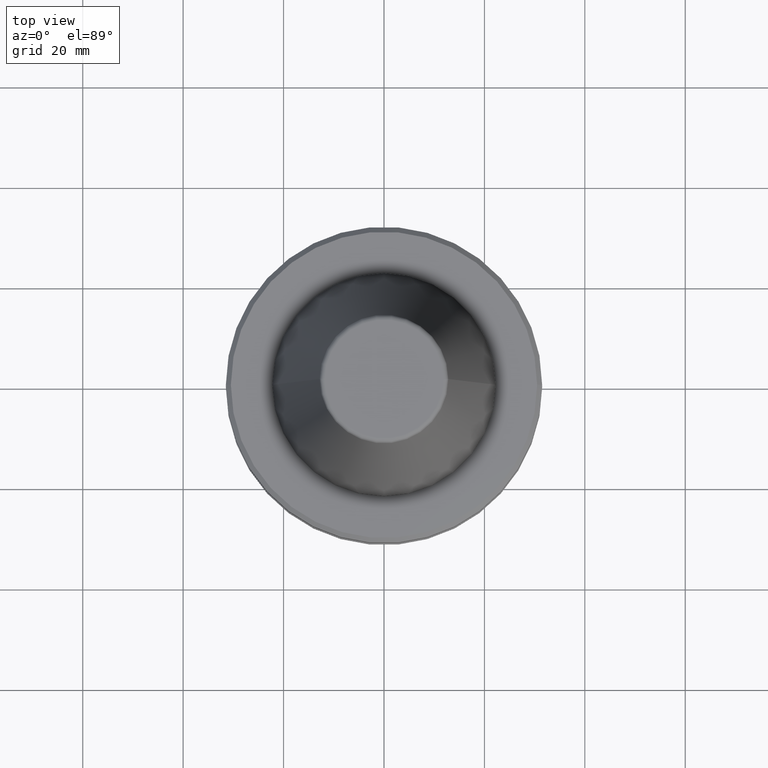
[diagram: clean part render]
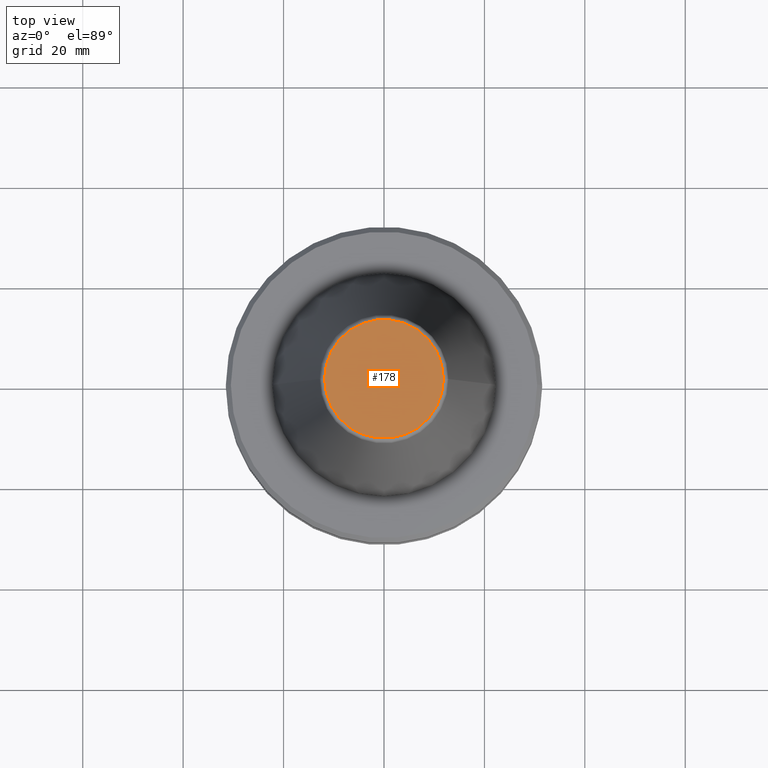
[diagram: same view with one face highlighted and labeled with its STEP entity id]
A machine part, top view. The second image highlights one B-rep face of the part: STEP entity #178.
In plain terms, the highlighted planar face has unit normal (0, 0, -1).
Its self-contained STEP definition (entity closure, byte-faithful):
#1 = CARTESIAN_POINT ( 'NONE',  ( 11.82266927716813000, 0.0000000000000000000, 65.40000000000057400 ) ) ;
#6 = DIRECTION ( 'NONE',  ( -1.000000000000000000, 0.0000000000000000000, -0.0000000000000000000 ) ) ;
#9 = DIRECTION ( 'NONE',  ( 0.0000000000000000000, 0.0000000000000000000, -1.000000000000000000 ) ) ;
#43 = PLANE ( 'NONE',  #461 ) ;
#46 = AXIS2_PLACEMENT_3D ( 'NONE', #59, #295, #918 ) ;
#52 = CIRCLE ( 'NONE', #46, 11.82266927716813000 ) ;
#59 = CARTESIAN_POINT ( 'NONE',  ( 0.0000000000000000000, 0.0000000000000000000, 65.40000000000057400 ) ) ;
#62 = DIRECTION ( 'NONE',  ( 1.000000000000000000, 0.0000000000000000000, 0.0000000000000000000 ) ) ;
#63 = FACE_OUTER_BOUND ( 'NONE', #865, .T. ) ;
#92 = DIRECTION ( 'NONE',  ( -0.0000000000000000000, -0.0000000000000000000, 1.000000000000000000 ) ) ;
#178 = ADVANCED_FACE ( 'NONE', ( #63 ), #43, .F. ) ;
#202 = ORIENTED_EDGE ( 'NONE', *, *, #325, .T. ) ;
#278 = EDGE_CURVE ( 'NONE', #367, #536, #785, .T. ) ;
#295 = DIRECTION ( 'NONE',  ( -0.0000000000000000000, -0.0000000000000000000, 1.000000000000000000 ) ) ;
#325 = EDGE_CURVE ( 'NONE', #536, #367, #52, .T. ) ;
#367 = VERTEX_POINT ( 'NONE', #1 ) ;
#454 = CARTESIAN_POINT ( 'NONE',  ( 0.0000000000000000000, 11.82266927716813000, 65.40000000000046000 ) ) ;
#457 = CARTESIAN_POINT ( 'NONE',  ( 0.0000000000000000000, 0.0000000000000000000, 65.40000000000057400 ) ) ;
#461 = AXIS2_PLACEMENT_3D ( 'NONE', #454, #9, #6 ) ;
#536 = VERTEX_POINT ( 'NONE', #824 ) ;
#785 = CIRCLE ( 'NONE', #830, 11.82266927716813000 ) ;
#824 = CARTESIAN_POINT ( 'NONE',  ( -11.82266927716813000, 1.508450817090336400E-015, 65.40000000000057400 ) ) ;
#830 = AXIS2_PLACEMENT_3D ( 'NONE', #457, #92, #62 ) ;
#865 = EDGE_LOOP ( 'NONE', ( #934, #202 ) ) ;
#918 = DIRECTION ( 'NONE',  ( 1.000000000000000000, 0.0000000000000000000, 0.0000000000000000000 ) ) ;
#934 = ORIENTED_EDGE ( 'NONE', *, *, #278, .T. ) ;